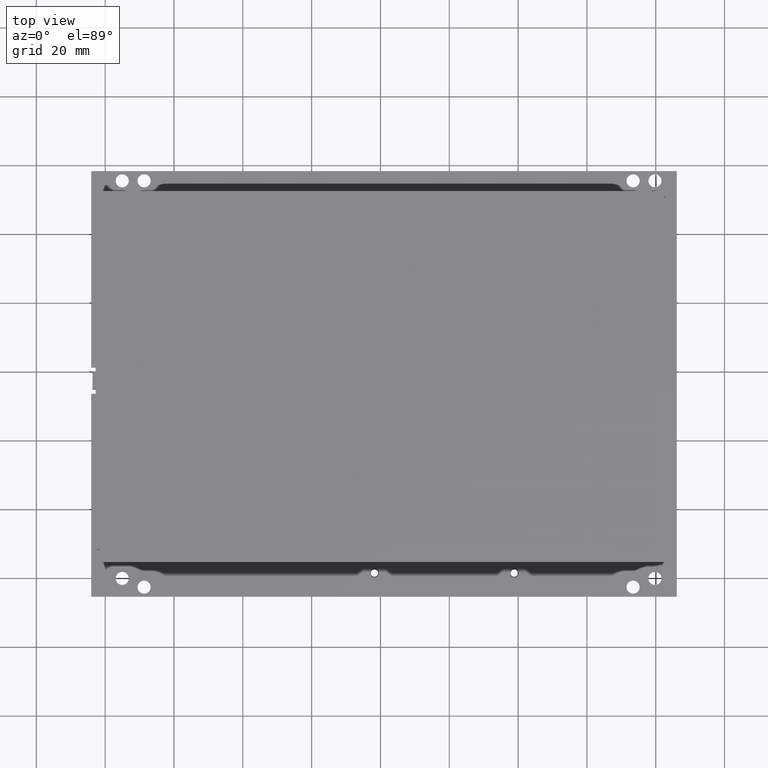
[diagram: clean part render]
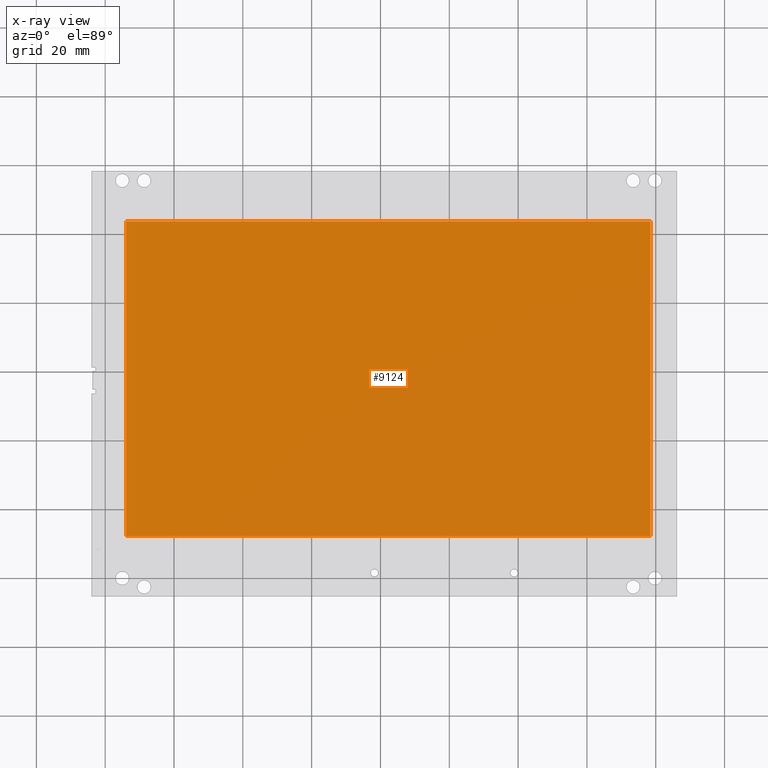
[diagram: x-ray — body ghosted, one internal face saturated and labeled with its STEP entity id]
A machine part, top view, then the same camera in x-ray: the body is ghosted and one INTERNAL B-rep face — a face not visible from any outside direction — is saturated and labeled: STEP entity #9124.
In plain terms, the highlighted planar face has unit normal (0, 0, -1).
Its self-contained STEP definition (entity closure, byte-faithful):
#851 = CARTESIAN_POINT ( 'NONE',  ( 3.090551181102360700, 1.701574803149605900, 0.4839370078740157200 ) ) ;
#856 = FACE_OUTER_BOUND ( 'NONE', #22989, .T. ) ;
#860 = FACE_BOUND ( 'NONE', #22990, .T. ) ;
#861 = PLANE ( 'NONE',  #11771 ) ;
#863 = DIRECTION ( 'NONE',  ( 0.0000000000000000000, 0.0000000000000000000, -1.000000000000000000 ) ) ;
#864 = DIRECTION ( 'NONE',  ( -1.000000000000000000, 0.0000000000000000000, -0.0000000000000000000 ) ) ;
#2400 = EDGE_CURVE ( 'NONE', #22645, #22646, #11580, .T. ) ;
#9124 = ADVANCED_FACE ( 'NONE', ( #860, #856 ), #861, .F. ) ;
#9459 = EDGE_CURVE ( 'NONE', #22687, #22681, #10251, .T. ) ;
#9461 = EDGE_CURVE ( 'NONE', #22690, #22687, #10256, .T. ) ;
#9463 = EDGE_CURVE ( 'NONE', #22693, #22690, #10262, .T. ) ;
#9465 = EDGE_CURVE ( 'NONE', #22681, #22693, #10268, .T. ) ;
#9466 = EDGE_CURVE ( 'NONE', #22646, #22645, #9918, .T. ) ;
#9911 = VECTOR ( 'NONE', #10253, 39.37007874015748100 ) ;
#9913 = VECTOR ( 'NONE', #10258, 39.37007874015748100 ) ;
#9915 = VECTOR ( 'NONE', #10264, 39.37007874015748100 ) ;
#9917 = VECTOR ( 'NONE', #10270, 39.37007874015748100 ) ;
#9918 = CIRCLE ( 'NONE', #9920, 0.004999999999999997500 ) ;
#9920 = AXIS2_PLACEMENT_3D ( 'NONE', #10271, #10272, #10273 ) ;
#10251 = LINE ( 'NONE', #10252, #9911 ) ;
#10252 = CARTESIAN_POINT ( 'NONE',  ( 3.090551181102362900, -1.898425196850394000, 0.4839370078740157200 ) ) ;
#10253 = DIRECTION ( 'NONE',  ( 0.0000000000000000000, 1.000000000000000000, 0.0000000000000000000 ) ) ;
#10256 = LINE ( 'NONE', #10257, #9913 ) ;
#10257 = CARTESIAN_POINT ( 'NONE',  ( -2.909448818897637500, -1.898425196850394000, 0.4839370078740157200 ) ) ;
#10258 = DIRECTION ( 'NONE',  ( 1.000000000000000000, 0.0000000000000000000, 0.0000000000000000000 ) ) ;
#10262 = LINE ( 'NONE', #10263, #9915 ) ;
#10263 = CARTESIAN_POINT ( 'NONE',  ( -2.909448818897637500, -1.898425196850394000, 0.4839370078740157200 ) ) ;
#10264 = DIRECTION ( 'NONE',  ( -0.0000000000000000000, -1.000000000000000000, -0.0000000000000000000 ) ) ;
#10268 = LINE ( 'NONE', #10269, #9917 ) ;
#10269 = CARTESIAN_POINT ( 'NONE',  ( -2.909448818897637500, 1.701574803149605900, 0.4839370078740157200 ) ) ;
#10270 = DIRECTION ( 'NONE',  ( -1.000000000000000000, -0.0000000000000000000, -0.0000000000000000000 ) ) ;
#10271 = CARTESIAN_POINT ( 'NONE',  ( 0.09055118110236207200, -0.09842519685039480300, 0.4839370078740157200 ) ) ;
#10272 = DIRECTION ( 'NONE',  ( 0.0000000000000000000, 0.0000000000000000000, 1.000000000000000000 ) ) ;
#10273 = DIRECTION ( 'NONE',  ( 1.000000000000000000, 0.0000000000000000000, 0.0000000000000000000 ) ) ;
#11580 = CIRCLE ( 'NONE', #11585, 0.004999999999999997500 ) ;
#11585 = AXIS2_PLACEMENT_3D ( 'NONE', #22109, #22110, #22111 ) ;
#11771 = AXIS2_PLACEMENT_3D ( 'NONE', #851, #863, #864 ) ;
#15289 = ORIENTED_EDGE ( 'NONE', *, *, #9466, .F. ) ;
#15290 = ORIENTED_EDGE ( 'NONE', *, *, #2400, .F. ) ;
#15291 = ORIENTED_EDGE ( 'NONE', *, *, #9459, .T. ) ;
#15292 = ORIENTED_EDGE ( 'NONE', *, *, #9465, .T. ) ;
#15293 = ORIENTED_EDGE ( 'NONE', *, *, #9463, .T. ) ;
#15294 = ORIENTED_EDGE ( 'NONE', *, *, #9461, .T. ) ;
#19827 = CARTESIAN_POINT ( 'NONE',  ( 0.08555118110236206700, -0.09842519685039480300, 0.4839370078740157200 ) ) ;
#19828 = CARTESIAN_POINT ( 'NONE',  ( 0.09555118110236206200, -0.09842519685039480300, 0.4839370078740157200 ) ) ;
#19863 = CARTESIAN_POINT ( 'NONE',  ( 3.090551181102362900, 1.701574803149605900, 0.4839370078740157200 ) ) ;
#19869 = CARTESIAN_POINT ( 'NONE',  ( 3.090551181102362900, -1.898425196850394000, 0.4839370078740157200 ) ) ;
#19872 = CARTESIAN_POINT ( 'NONE',  ( -2.909448818897637500, -1.898425196850394000, 0.4839370078740157200 ) ) ;
#19875 = CARTESIAN_POINT ( 'NONE',  ( -2.909448818897637500, 1.701574803149605900, 0.4839370078740157200 ) ) ;
#22109 = CARTESIAN_POINT ( 'NONE',  ( 0.09055118110236207200, -0.09842519685039480300, 0.4839370078740157200 ) ) ;
#22110 = DIRECTION ( 'NONE',  ( 0.0000000000000000000, 0.0000000000000000000, 1.000000000000000000 ) ) ;
#22111 = DIRECTION ( 'NONE',  ( 1.000000000000000000, 0.0000000000000000000, 0.0000000000000000000 ) ) ;
#22645 = VERTEX_POINT ( 'NONE', #19827 ) ;
#22646 = VERTEX_POINT ( 'NONE', #19828 ) ;
#22681 = VERTEX_POINT ( 'NONE', #19863 ) ;
#22687 = VERTEX_POINT ( 'NONE', #19869 ) ;
#22690 = VERTEX_POINT ( 'NONE', #19872 ) ;
#22693 = VERTEX_POINT ( 'NONE', #19875 ) ;
#22989 = EDGE_LOOP ( 'NONE', ( #15291, #15292, #15293, #15294 ) ) ;
#22990 = EDGE_LOOP ( 'NONE', ( #15289, #15290 ) ) ;